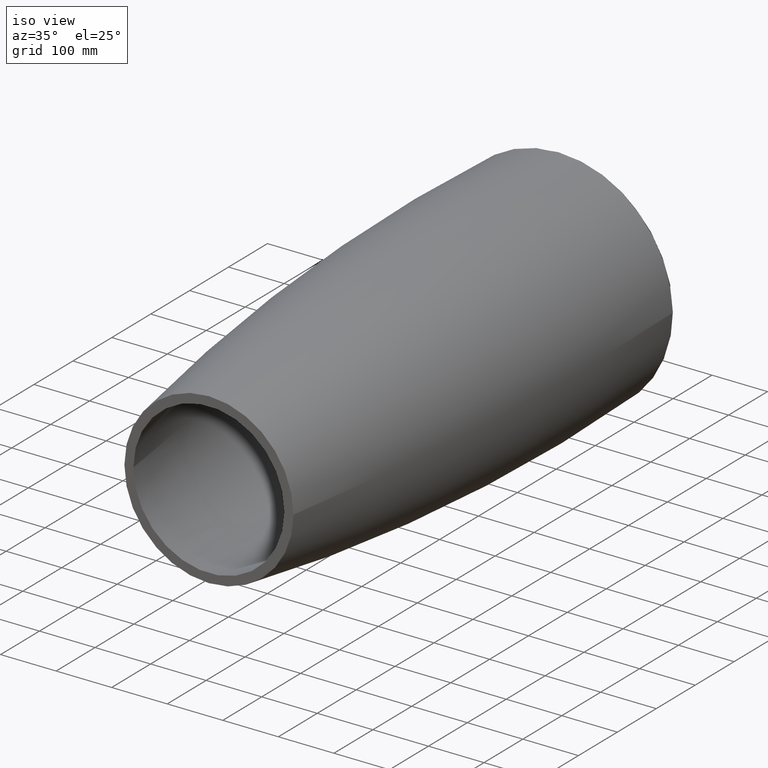
[diagram: clean part render]
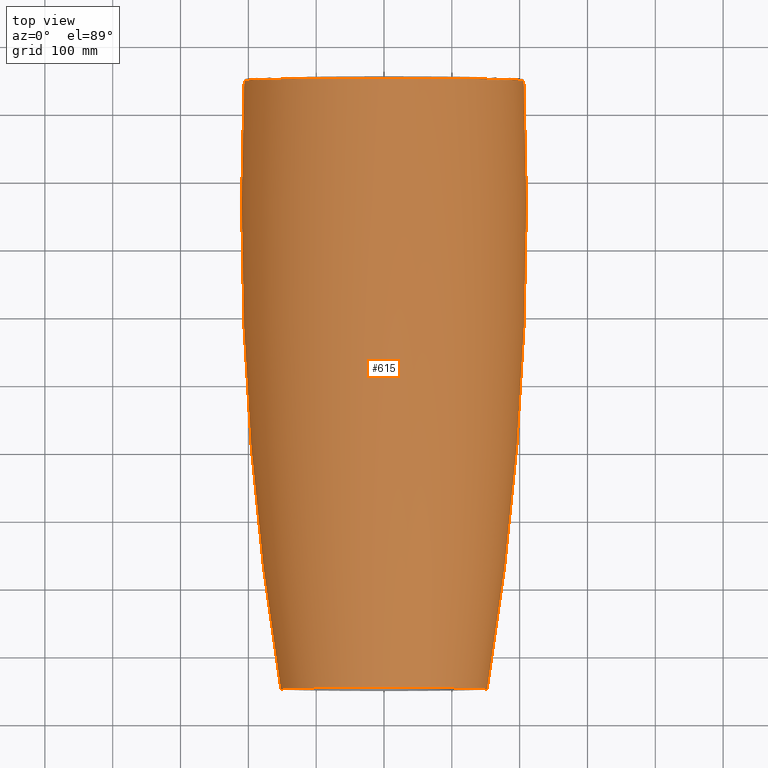
[diagram: tour spotlight — one face highlighted and labeled with its STEP entity id]
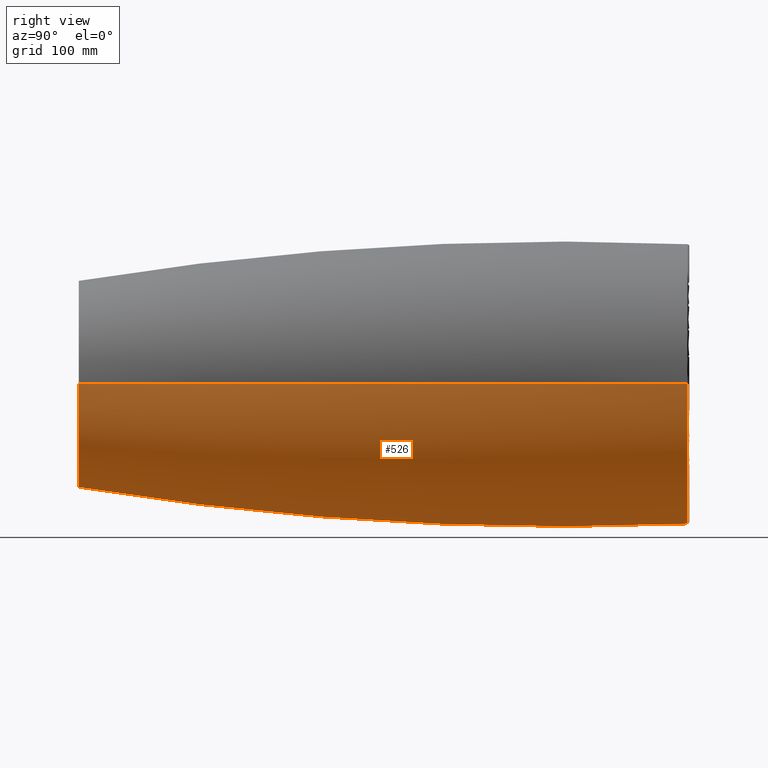
[diagram: tour spotlight — one face highlighted and labeled with its STEP entity id]
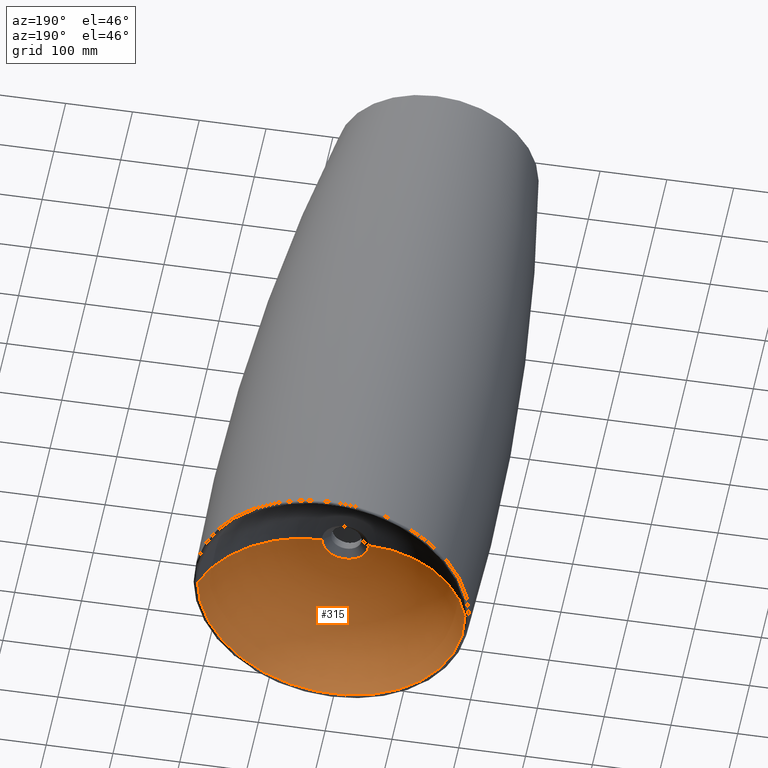
[diagram: tour spotlight — one face highlighted and labeled with its STEP entity id]
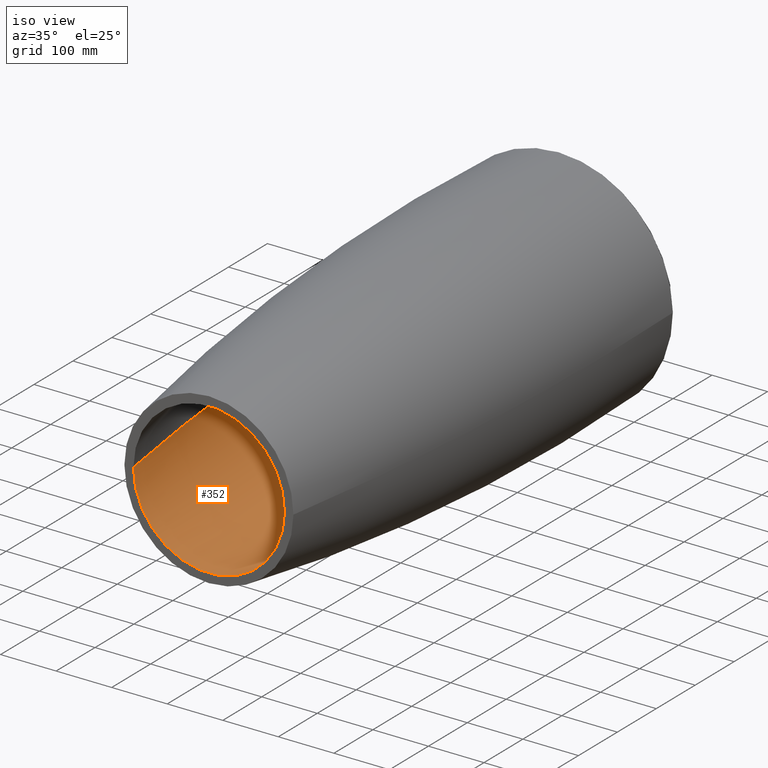
[diagram: tour spotlight — one face highlighted and labeled with its STEP entity id]
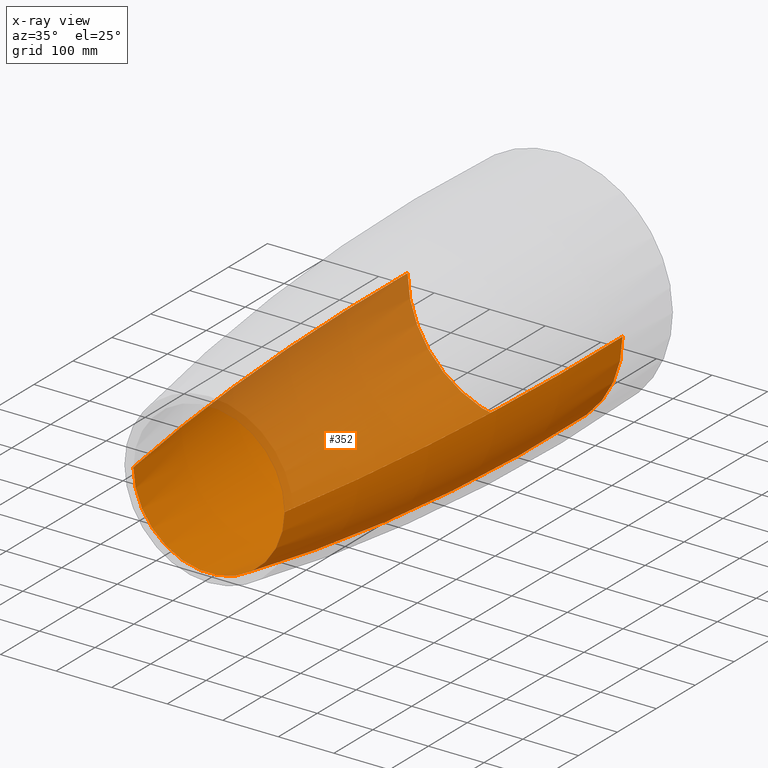
[diagram: x-ray of the same camera — body ghosted, this tour face saturated]
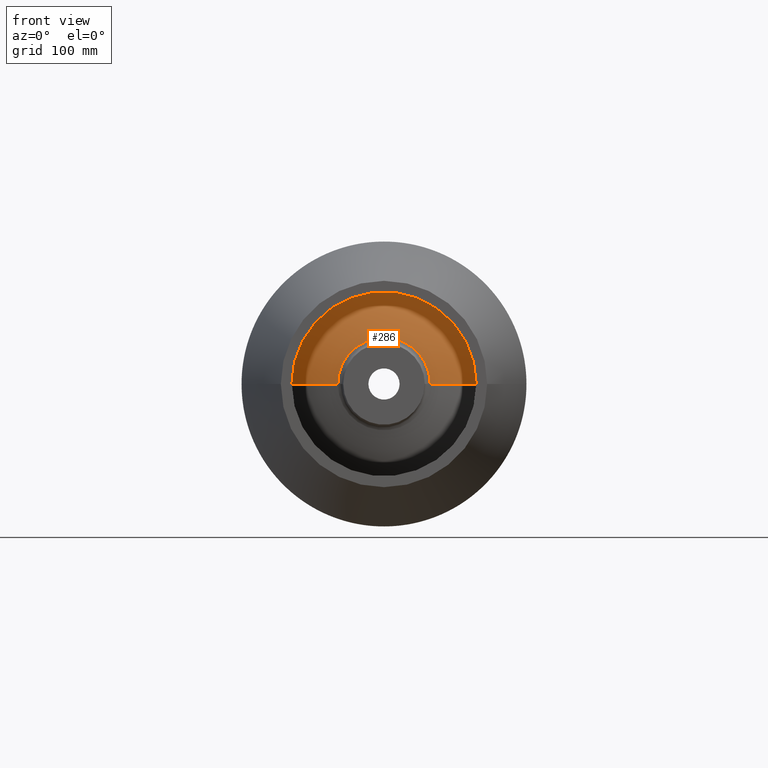
[diagram: tour spotlight — one face highlighted and labeled with its STEP entity id]
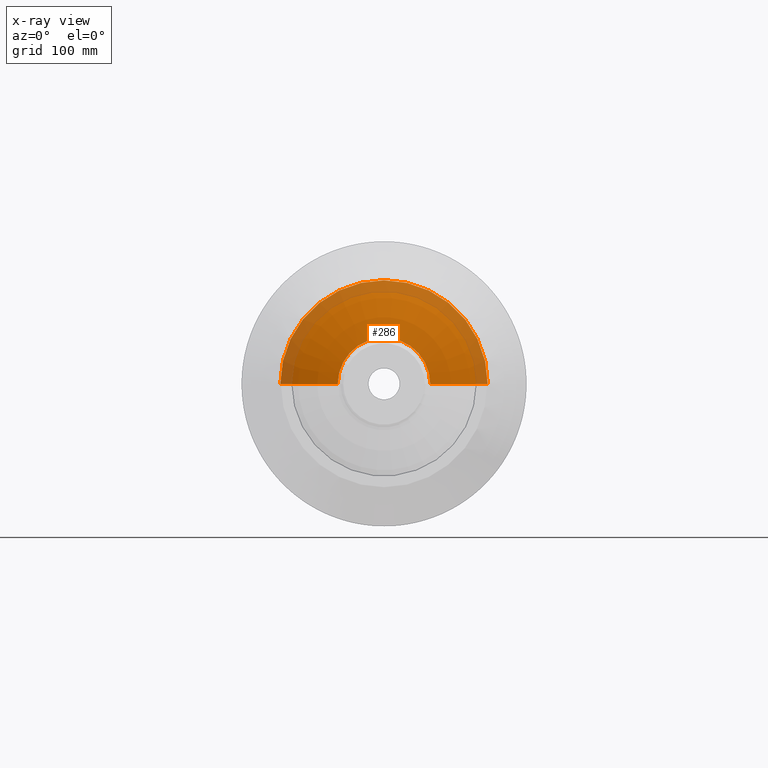
[diagram: x-ray of the same camera — body ghosted, this tour face saturated]
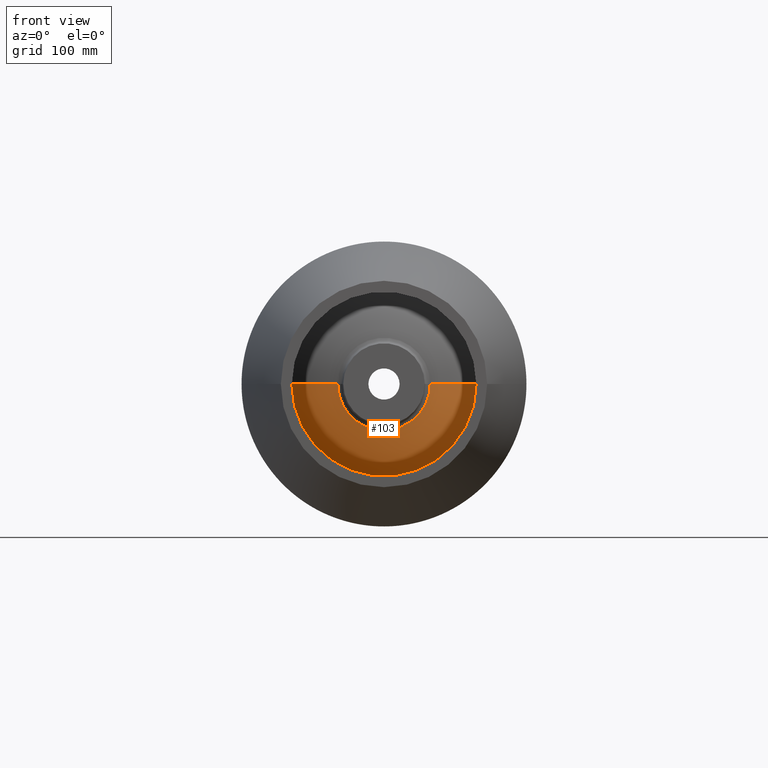
[diagram: tour spotlight — one face highlighted and labeled with its STEP entity id]
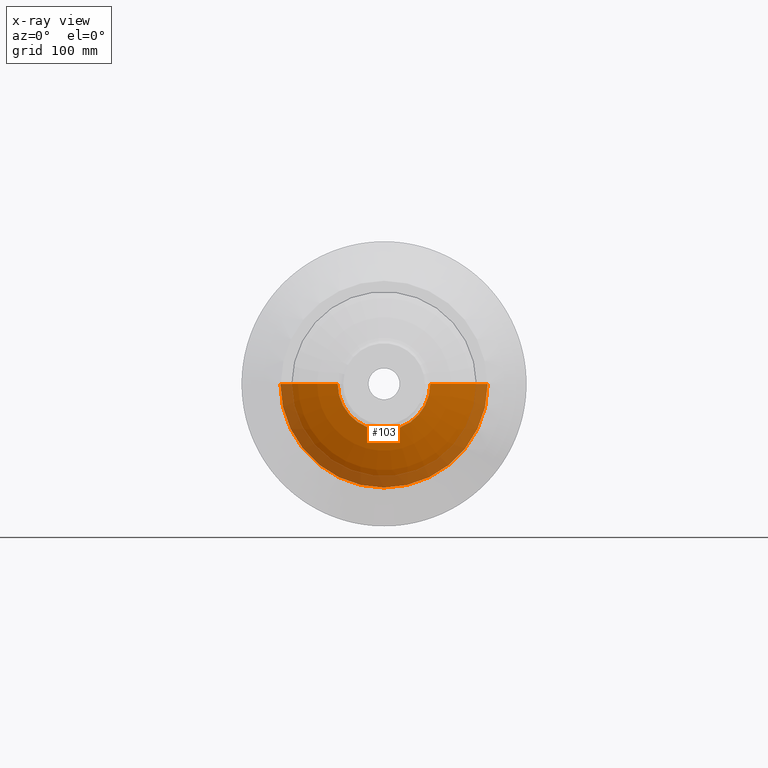
[diagram: x-ray of the same camera — body ghosted, this tour face saturated]
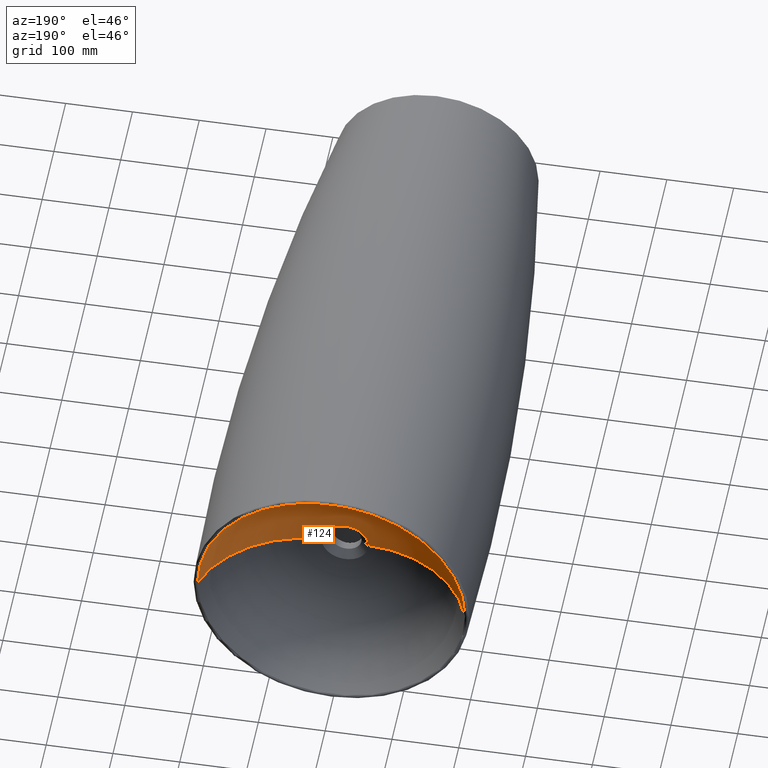
[diagram: tour spotlight — one face highlighted and labeled with its STEP entity id]
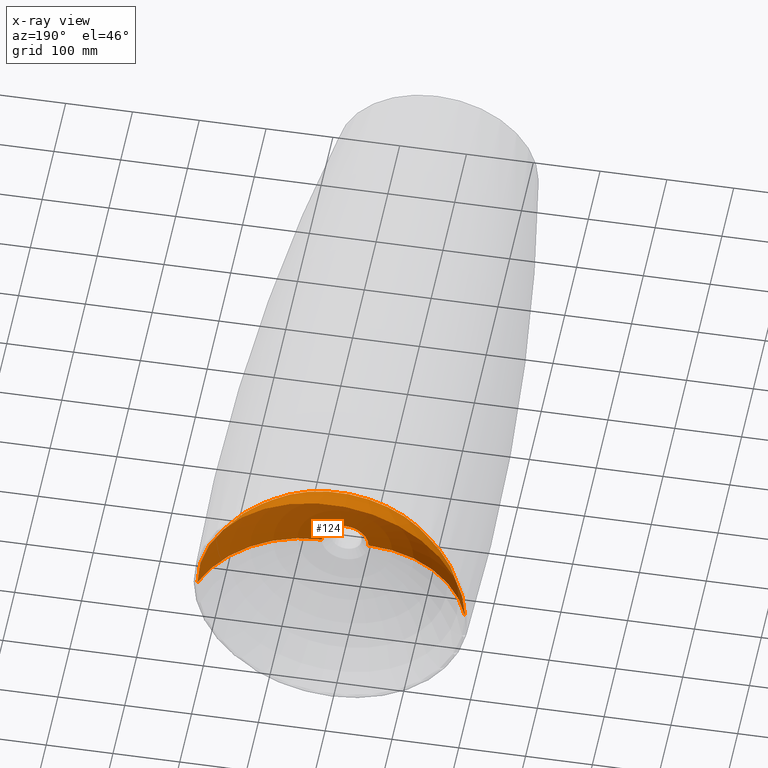
[diagram: x-ray of the same camera — body ghosted, this tour face saturated]
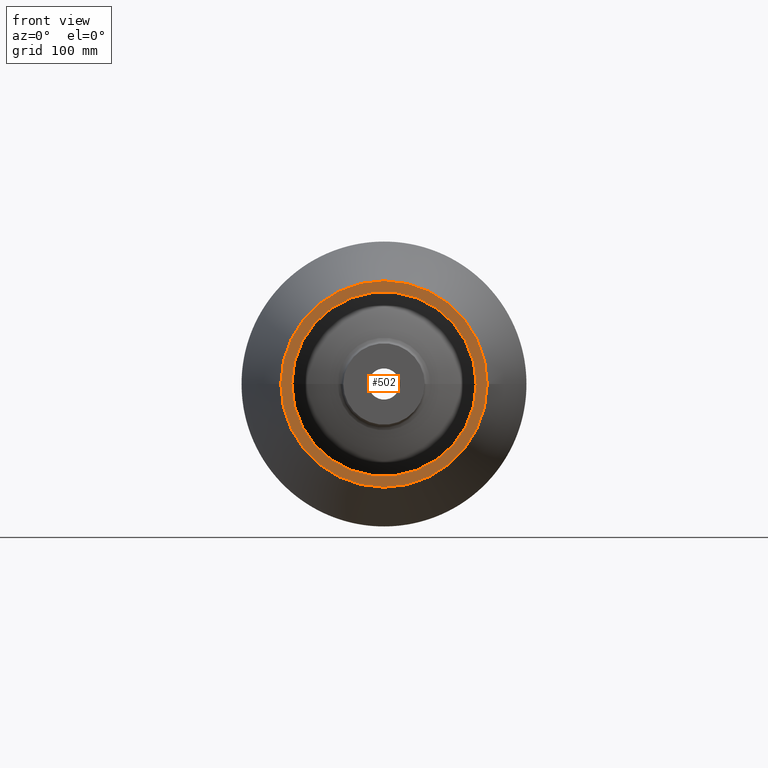
[diagram: tour spotlight — one face highlighted and labeled with its STEP entity id]
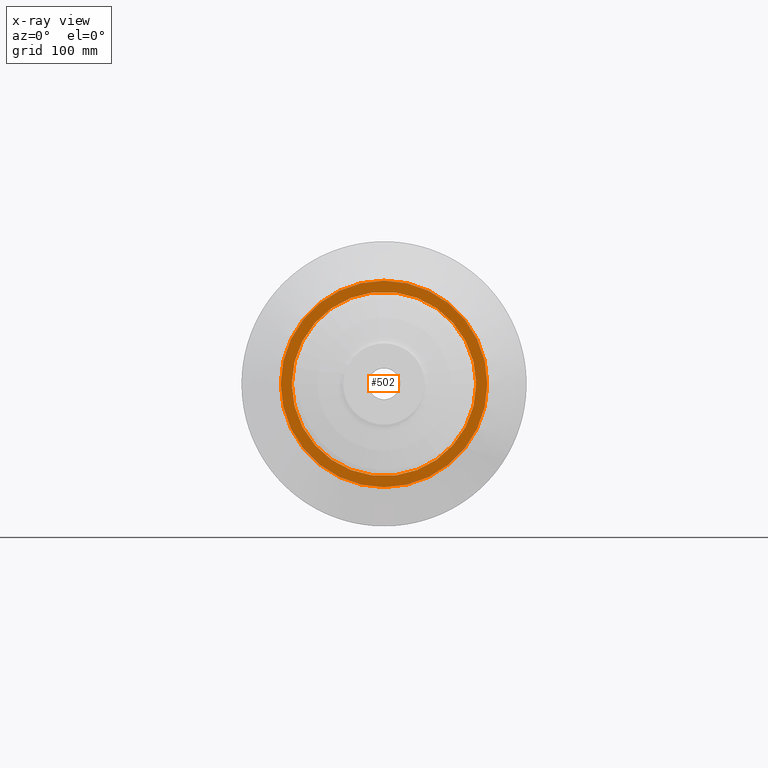
[diagram: x-ray of the same camera — body ghosted, this tour face saturated]
A machine part: a face-by-face anatomy tour. The part has 22 B-rep faces; the first image is the clean iso view, then the 8 largest visible faces are spotlighted one at a time (largest first), each with its STEP entity span.

Face 1 — top view, entity #615. In plain terms, the highlighted toroidal blend (fillet) surface has major radius 4200.2 mm and minor (blend) radius 4410.2 mm.
Definition (entity closure, byte-faithful):
#42 = TOROIDAL_SURFACE ( 'NONE', #115, -4200.202065928870979, 4410.202065928870979 ) ;
#60 = AXIS2_PLACEMENT_3D ( 'NONE', #577, #312, #309 ) ;
#69 = DIRECTION ( 'NONE',  ( 1.000000000000000000, 1.368506572352135864E-16, 0.000000000000000000 ) ) ;
#76 = DIRECTION ( 'NONE',  ( -1.000000000000000000, 0.000000000000000000, 0.000000000000000000 ) ) ;
#115 = AXIS2_PLACEMENT_3D ( 'NONE', #592, #401, #337 ) ;
#187 = EDGE_CURVE ( 'NONE', #351, #551, #336, .T. ) ;
#189 = CARTESIAN_POINT ( 'NONE',  ( 206.1215591921063606, 847.1257882539825914, 2.524261076998749186E-14 ) ) ;
#197 = VERTEX_POINT ( 'NONE', #232 ) ;
#209 = ORIENTED_EDGE ( 'NONE', *, *, #187, .F. ) ;
#210 = AXIS2_PLACEMENT_3D ( 'NONE', #266, #523, #76 ) ;
#216 = EDGE_CURVE ( 'NONE', #197, #586, #283, .T. ) ;
#232 = CARTESIAN_POINT ( 'NONE',  ( 152.1123985246398433, -49.99999999999991473, 2.193550348318507100E-14 ) ) ;
#266 = CARTESIAN_POINT ( 'NONE',  ( 4200.202065928870979, 662.2085823914454750, 0.000000000000000000 ) ) ;
#283 = CIRCLE ( 'NONE', #60, 4410.202065928870979 ) ;
#309 = DIRECTION ( 'NONE',  ( 1.000000000000000000, 0.000000000000000000, 1.224646799147353454E-16 ) ) ;
#312 = DIRECTION ( 'NONE',  ( -1.224646799147353207E-16, -1.526929428187426516E-32, 1.000000000000000000 ) ) ;
#336 = CIRCLE ( 'NONE', #210, 4410.202065928870979 ) ;
#337 = DIRECTION ( 'NONE',  ( -1.000000000000000000, -1.246832498358330099E-16, 0.000000000000000000 ) ) ;
#351 = VERTEX_POINT ( 'NONE', #477 ) ;
#365 = DIRECTION ( 'NONE',  ( -1.246832498358330099E-16, 1.000000000000000000, -0.000000000000000000 ) ) ;
#372 = CIRCLE ( 'NONE', #536, 152.1123985246397581 ) ;
#382 = CIRCLE ( 'NONE', #584, 206.1215591921062753 ) ;
#391 = EDGE_CURVE ( 'NONE', #551, #586, #382, .T. ) ;
#396 = DIRECTION ( 'NONE',  ( -1.246832498358330099E-16, 1.000000000000000000, -0.000000000000000000 ) ) ;
#401 = DIRECTION ( 'NONE',  ( -1.246832498358330099E-16, 1.000000000000000000, -0.000000000000000000 ) ) ;
#421 = CARTESIAN_POINT ( 'NONE',  ( -206.1215591921065879, 847.1257882539825914, 0.000000000000000000 ) ) ;
#438 = ORIENTED_EDGE ( 'NONE', *, *, #391, .F. ) ;
#440 = CARTESIAN_POINT ( 'NONE',  ( 8.880048061353697261E-14, -49.99999999999993605, 0.000000000000000000 ) ) ;
#442 = EDGE_CURVE ( 'NONE', #351, #197, #372, .T. ) ;
#446 = DIRECTION ( 'NONE',  ( -1.000000000000000000, 0.000000000000000000, 0.000000000000000000 ) ) ;
#454 = CARTESIAN_POINT ( 'NONE',  ( -1.056223962992482816E-13, 847.1257882539825914, 0.000000000000000000 ) ) ;
#477 = CARTESIAN_POINT ( 'NONE',  ( -152.1123985246396728, -49.99999999999995737, 0.000000000000000000 ) ) ;
#487 = ORIENTED_EDGE ( 'NONE', *, *, #442, .T. ) ;
#523 = DIRECTION ( 'NONE',  ( 0.000000000000000000, -0.000000000000000000, -1.000000000000000000 ) ) ;
#536 = AXIS2_PLACEMENT_3D ( 'NONE', #440, #365, #69 ) ;
#544 = EDGE_LOOP ( 'NONE', ( #487, #600, #438, #209 ) ) ;
#551 = VERTEX_POINT ( 'NONE', #421 ) ;
#577 = CARTESIAN_POINT ( 'NONE',  ( -4200.202065928870979, 662.2085823914443381, -5.143764015811891808E-13 ) ) ;
#584 = AXIS2_PLACEMENT_3D ( 'NONE', #454, #396, #446 ) ;
#586 = VERTEX_POINT ( 'NONE', #189 ) ;
#592 = CARTESIAN_POINT ( 'NONE',  ( 0.000000000000000000, 662.2085823914449065, 0.000000000000000000 ) ) ;
#600 = ORIENTED_EDGE ( 'NONE', *, *, #216, .T. ) ;
#615 = ADVANCED_FACE ( 'NONE', ( #627 ), #42, .T. ) ;
#627 = FACE_OUTER_BOUND ( 'NONE', #544, .T. ) ;

Face 2 — right view, entity #526. In plain terms, the highlighted toroidal blend (fillet) surface has major radius 4200.2 mm and minor (blend) radius 4410.2 mm.
Definition (entity closure, byte-faithful):
#5 = EDGE_CURVE ( 'NONE', #586, #551, #496, .T. ) ;
#15 = EDGE_CURVE ( 'NONE', #197, #351, #412, .T. ) ;
#45 = AXIS2_PLACEMENT_3D ( 'NONE', #184, #376, #167 ) ;
#60 = AXIS2_PLACEMENT_3D ( 'NONE', #577, #312, #309 ) ;
#76 = DIRECTION ( 'NONE',  ( -1.000000000000000000, 0.000000000000000000, 0.000000000000000000 ) ) ;
#151 = ORIENTED_EDGE ( 'NONE', *, *, #15, .T. ) ;
#167 = DIRECTION ( 'NONE',  ( -1.000000000000000000, -1.246832498358330099E-16, 0.000000000000000000 ) ) ;
#184 = CARTESIAN_POINT ( 'NONE',  ( 0.000000000000000000, 662.2085823914449065, 0.000000000000000000 ) ) ;
#187 = EDGE_CURVE ( 'NONE', #351, #551, #336, .T. ) ;
#189 = CARTESIAN_POINT ( 'NONE',  ( 206.1215591921063606, 847.1257882539825914, 2.524261076998749186E-14 ) ) ;
#190 = CARTESIAN_POINT ( 'NONE',  ( 8.880048061353697261E-14, -49.99999999999993605, 0.000000000000000000 ) ) ;
#197 = VERTEX_POINT ( 'NONE', #232 ) ;
#199 = TOROIDAL_SURFACE ( 'NONE', #45, -4200.202065928870979, 4410.202065928870979 ) ;
#200 = ORIENTED_EDGE ( 'NONE', *, *, #216, .F. ) ;
#210 = AXIS2_PLACEMENT_3D ( 'NONE', #266, #523, #76 ) ;
#216 = EDGE_CURVE ( 'NONE', #197, #586, #283, .T. ) ;
#231 = AXIS2_PLACEMENT_3D ( 'NONE', #190, #379, #582 ) ;
#232 = CARTESIAN_POINT ( 'NONE',  ( 152.1123985246398433, -49.99999999999991473, 2.193550348318507100E-14 ) ) ;
#238 = DIRECTION ( 'NONE',  ( -1.246832498358330099E-16, 1.000000000000000000, -0.000000000000000000 ) ) ;
#266 = CARTESIAN_POINT ( 'NONE',  ( 4200.202065928870979, 662.2085823914454750, 0.000000000000000000 ) ) ;
#283 = CIRCLE ( 'NONE', #60, 4410.202065928870979 ) ;
#309 = DIRECTION ( 'NONE',  ( 1.000000000000000000, 0.000000000000000000, 1.224646799147353454E-16 ) ) ;
#312 = DIRECTION ( 'NONE',  ( -1.224646799147353207E-16, -1.526929428187426516E-32, 1.000000000000000000 ) ) ;
#336 = CIRCLE ( 'NONE', #210, 4410.202065928870979 ) ;
#351 = VERTEX_POINT ( 'NONE', #477 ) ;
#376 = DIRECTION ( 'NONE',  ( -1.246832498358330099E-16, 1.000000000000000000, -0.000000000000000000 ) ) ;
#379 = DIRECTION ( 'NONE',  ( -1.246832498358330099E-16, 1.000000000000000000, -0.000000000000000000 ) ) ;
#412 = CIRCLE ( 'NONE', #231, 152.1123985246397581 ) ;
#421 = CARTESIAN_POINT ( 'NONE',  ( -206.1215591921065879, 847.1257882539825914, 0.000000000000000000 ) ) ;
#426 = FACE_OUTER_BOUND ( 'NONE', #628, .T. ) ;
#430 = DIRECTION ( 'NONE',  ( -1.000000000000000000, 0.000000000000000000, 0.000000000000000000 ) ) ;
#477 = CARTESIAN_POINT ( 'NONE',  ( -152.1123985246396728, -49.99999999999995737, 0.000000000000000000 ) ) ;
#496 = CIRCLE ( 'NONE', #605, 206.1215591921062753 ) ;
#504 = ORIENTED_EDGE ( 'NONE', *, *, #187, .T. ) ;
#523 = DIRECTION ( 'NONE',  ( 0.000000000000000000, -0.000000000000000000, -1.000000000000000000 ) ) ;
#526 = ADVANCED_FACE ( 'NONE', ( #426 ), #199, .T. ) ;
#527 = CARTESIAN_POINT ( 'NONE',  ( -1.056223962992482816E-13, 847.1257882539825914, 0.000000000000000000 ) ) ;
#539 = ORIENTED_EDGE ( 'NONE', *, *, #5, .F. ) ;
#551 = VERTEX_POINT ( 'NONE', #421 ) ;
#577 = CARTESIAN_POINT ( 'NONE',  ( -4200.202065928870979, 662.2085823914443381, -5.143764015811891808E-13 ) ) ;
#582 = DIRECTION ( 'NONE',  ( 1.000000000000000000, 1.368506572352135864E-16, 0.000000000000000000 ) ) ;
#586 = VERTEX_POINT ( 'NONE', #189 ) ;
#605 = AXIS2_PLACEMENT_3D ( 'NONE', #527, #238, #430 ) ;
#628 = EDGE_LOOP ( 'NONE', ( #200, #151, #504, #539 ) ) ;

Face 3 — auxiliary view, entity #315. In plain terms, the highlighted toroidal blend (fillet) surface has major radius 34.9175 mm and minor (blend) radius 174.889 mm.
Definition (entity closure, byte-faithful):
#3 = DIRECTION ( 'NONE',  ( 1.000000000000000000, 0.000000000000000000, 1.224646799147352961E-16 ) ) ;
#16 = AXIS2_PLACEMENT_3D ( 'NONE', #333, #531, #86 ) ;
#24 = DIRECTION ( 'NONE',  ( -1.246832498358330099E-16, 1.000000000000000000, -0.000000000000000000 ) ) ;
#26 = EDGE_CURVE ( 'NONE', #48, #59, #51, .T. ) ;
#30 = DIRECTION ( 'NONE',  ( -1.246832498358330099E-16, 1.000000000000000000, -0.000000000000000000 ) ) ;
#41 = ORIENTED_EDGE ( 'NONE', *, *, #204, .F. ) ;
#48 = VERTEX_POINT ( 'NONE', #251 ) ;
#51 = CIRCLE ( 'NONE', #16, 174.8895041106751194 ) ;
#59 = VERTEX_POINT ( 'NONE', #353 ) ;
#81 = DIRECTION ( 'NONE',  ( -1.000000000000000000, -1.246832498358330099E-16, 0.000000000000000000 ) ) ;
#86 = DIRECTION ( 'NONE',  ( -1.000000000000000000, 0.000000000000000000, 0.000000000000000000 ) ) ;
#88 = CARTESIAN_POINT ( 'NONE',  ( 34.91753592594206168, 904.8895041106750341, 4.276164860581778964E-15 ) ) ;
#90 = CIRCLE ( 'NONE', #451, 200.2874928100085583 ) ;
#131 = DIRECTION ( 'NONE',  ( -1.246832498358330099E-16, 1.000000000000000000, -0.000000000000000000 ) ) ;
#135 = VERTEX_POINT ( 'NONE', #161 ) ;
#161 = CARTESIAN_POINT ( 'NONE',  ( 34.91753592594214695, 730.0000000000001137, 4.276164860581787642E-15 ) ) ;
#204 = EDGE_CURVE ( 'NONE', #135, #48, #573, .T. ) ;
#241 = EDGE_CURVE ( 'NONE', #374, #59, #90, .T. ) ;
#251 = CARTESIAN_POINT ( 'NONE',  ( -34.91753592594231748, 730.0000000000001137, 0.000000000000000000 ) ) ;
#259 = AXIS2_PLACEMENT_3D ( 'NONE', #88, #293, #3 ) ;
#284 = TOROIDAL_SURFACE ( 'NONE', #625, 34.91753592594216826, 174.8895041106750909 ) ;
#293 = DIRECTION ( 'NONE',  ( -1.224646799147353207E-16, -1.526929428187426516E-32, 1.000000000000000000 ) ) ;
#296 = CARTESIAN_POINT ( 'NONE',  ( -1.110223024625156540E-13, 904.8895041106750341, 0.000000000000000000 ) ) ;
#299 = ORIENTED_EDGE ( 'NONE', *, *, #241, .T. ) ;
#307 = EDGE_LOOP ( 'NONE', ( #41, #413, #299, #311 ) ) ;
#311 = ORIENTED_EDGE ( 'NONE', *, *, #26, .F. ) ;
#315 = ADVANCED_FACE ( 'NONE', ( #324 ), #284, .F. ) ;
#324 = FACE_OUTER_BOUND ( 'NONE', #307, .T. ) ;
#333 = CARTESIAN_POINT ( 'NONE',  ( -34.91753592594228195, 904.8895041106750341, 0.000000000000000000 ) ) ;
#353 = CARTESIAN_POINT ( 'NONE',  ( -200.2874928100086720, 847.9762718334632154, 0.000000000000000000 ) ) ;
#361 = CARTESIAN_POINT ( 'NONE',  ( -1.057284373558699393E-13, 847.9762718334632154, 0.000000000000000000 ) ) ;
#370 = AXIS2_PLACEMENT_3D ( 'NONE', #517, #24, #375 ) ;
#374 = VERTEX_POINT ( 'NONE', #594 ) ;
#375 = DIRECTION ( 'NONE',  ( -1.000000000000000000, 0.000000000000000000, 0.000000000000000000 ) ) ;
#413 = ORIENTED_EDGE ( 'NONE', *, *, #623, .T. ) ;
#451 = AXIS2_PLACEMENT_3D ( 'NONE', #361, #30, #564 ) ;
#452 = CIRCLE ( 'NONE', #259, 174.8895041106751194 ) ;
#517 = CARTESIAN_POINT ( 'NONE',  ( -9.101877238015810986E-14, 730.0000000000001137, 0.000000000000000000 ) ) ;
#531 = DIRECTION ( 'NONE',  ( 0.000000000000000000, -0.000000000000000000, -1.000000000000000000 ) ) ;
#564 = DIRECTION ( 'NONE',  ( -1.000000000000000000, 0.000000000000000000, 0.000000000000000000 ) ) ;
#573 = CIRCLE ( 'NONE', #370, 34.91753592594223221 ) ;
#594 = CARTESIAN_POINT ( 'NONE',  ( 200.2874928100084730, 847.9762718334632154, 2.452814369790254858E-14 ) ) ;
#623 = EDGE_CURVE ( 'NONE', #135, #374, #452, .T. ) ;
#625 = AXIS2_PLACEMENT_3D ( 'NONE', #296, #131, #81 ) ;

Face 4 — iso view, entity #352. An x-ray twin of the same camera follows (body ghosted, this face saturated) — the face is partly hidden behind the body. In plain terms, the highlighted toroidal blend (fillet) surface has major radius 4200.2 mm and minor (blend) radius 4394.2 mm.
Definition (entity closure, byte-faithful):
#4 = ORIENTED_EDGE ( 'NONE', *, *, #138, .F. ) ;
#28 = CARTESIAN_POINT ( 'NONE',  ( -4200.202065928870979, 662.2085823914443381, -5.143764015811891808E-13 ) ) ;
#33 = CARTESIAN_POINT ( 'NONE',  ( -135.8988013690209016, -49.99999999999995026, 0.000000000000000000 ) ) ;
#35 = EDGE_CURVE ( 'NONE', #226, #511, #294, .T. ) ;
#49 = DIRECTION ( 'NONE',  ( 0.000000000000000000, -0.000000000000000000, -1.000000000000000000 ) ) ;
#78 = DIRECTION ( 'NONE',  ( 1.000000000000000000, 0.000000000000000000, 1.224646799147353454E-16 ) ) ;
#91 = AXIS2_PLACEMENT_3D ( 'NONE', #147, #110, #400 ) ;
#99 = DIRECTION ( 'NONE',  ( -1.000000000000000000, 0.000000000000000000, 0.000000000000000000 ) ) ;
#110 = DIRECTION ( 'NONE',  ( -1.246832498358330099E-16, 1.000000000000000000, -0.000000000000000000 ) ) ;
#138 = EDGE_CURVE ( 'NONE', #511, #172, #624, .T. ) ;
#142 = AXIS2_PLACEMENT_3D ( 'NONE', #318, #515, #457 ) ;
#144 = ORIENTED_EDGE ( 'NONE', *, *, #35, .F. ) ;
#145 = CARTESIAN_POINT ( 'NONE',  ( 8.880048061353697261E-14, -49.99999999999993605, 0.000000000000000000 ) ) ;
#147 = CARTESIAN_POINT ( 'NONE',  ( 0.000000000000000000, 662.2085823914449065, 0.000000000000000000 ) ) ;
#172 = VERTEX_POINT ( 'NONE', #567 ) ;
#175 = DIRECTION ( 'NONE',  ( -1.246832498358330099E-16, 1.000000000000000000, -0.000000000000000000 ) ) ;
#226 = VERTEX_POINT ( 'NONE', #411 ) ;
#233 = AXIS2_PLACEMENT_3D ( 'NONE', #28, #473, #78 ) ;
#245 = AXIS2_PLACEMENT_3D ( 'NONE', #145, #175, #483 ) ;
#250 = EDGE_LOOP ( 'NONE', ( #144, #358, #621, #4 ) ) ;
#294 = CIRCLE ( 'NONE', #245, 135.8988013690209868 ) ;
#318 = CARTESIAN_POINT ( 'NONE',  ( -9.187730895078067787E-14, 736.8857410418239624, 0.000000000000000000 ) ) ;
#330 = FACE_OUTER_BOUND ( 'NONE', #250, .T. ) ;
#352 = ADVANCED_FACE ( 'NONE', ( #330 ), #414, .F. ) ;
#358 = ORIENTED_EDGE ( 'NONE', *, *, #484, .T. ) ;
#400 = DIRECTION ( 'NONE',  ( -1.000000000000000000, -1.246832498358330099E-16, 0.000000000000000000 ) ) ;
#411 = CARTESIAN_POINT ( 'NONE',  ( 135.8988013690210721, -49.99999999999992184, 2.016161779638470888E-14 ) ) ;
#414 = TOROIDAL_SURFACE ( 'NONE', #91, -4200.202065928870979, 4394.202065928870979 ) ;
#423 = CIRCLE ( 'NONE', #142, 193.3654046113807681 ) ;
#435 = CARTESIAN_POINT ( 'NONE',  ( 193.3654046113807681, 736.8857410418239624, 2.368043238231606492E-14 ) ) ;
#449 = AXIS2_PLACEMENT_3D ( 'NONE', #494, #49, #99 ) ;
#457 = DIRECTION ( 'NONE',  ( -1.000000000000000000, 0.000000000000000000, 0.000000000000000000 ) ) ;
#473 = DIRECTION ( 'NONE',  ( -1.224646799147353207E-16, -1.526929428187426516E-32, 1.000000000000000000 ) ) ;
#481 = EDGE_CURVE ( 'NONE', #622, #172, #423, .T. ) ;
#483 = DIRECTION ( 'NONE',  ( 1.000000000000000000, 1.021185445935654007E-16, 0.000000000000000000 ) ) ;
#484 = EDGE_CURVE ( 'NONE', #226, #622, #509, .T. ) ;
#494 = CARTESIAN_POINT ( 'NONE',  ( 4200.202065928870979, 662.2085823914454750, 0.000000000000000000 ) ) ;
#509 = CIRCLE ( 'NONE', #233, 4394.202065928870979 ) ;
#511 = VERTEX_POINT ( 'NONE', #33 ) ;
#515 = DIRECTION ( 'NONE',  ( -1.246832498358330099E-16, 1.000000000000000000, -0.000000000000000000 ) ) ;
#567 = CARTESIAN_POINT ( 'NONE',  ( -193.3654046113808533, 736.8857410418239624, 0.000000000000000000 ) ) ;
#621 = ORIENTED_EDGE ( 'NONE', *, *, #481, .T. ) ;
#622 = VERTEX_POINT ( 'NONE', #435 ) ;
#624 = CIRCLE ( 'NONE', #449, 4394.202065928870979 ) ;

Face 5 — front view, entity #286. An x-ray twin of the same camera follows (body ghosted, this face saturated) — the face is partly hidden behind the body. In plain terms, the highlighted toroidal blend (fillet) surface has major radius 34.9175 mm and minor (blend) radius 189.889 mm.
Definition (entity closure, byte-faithful):
#19 = ORIENTED_EDGE ( 'NONE', *, *, #492, .T. ) ;
#43 = CARTESIAN_POINT ( 'NONE',  ( -9.426747841984855907E-14, 756.0556734282106390, 0.000000000000000000 ) ) ;
#50 = ORIENTED_EDGE ( 'NONE', *, *, #306, .T. ) ;
#72 = DIRECTION ( 'NONE',  ( 1.000000000000000000, 0.000000000000000000, 1.224646799147353207E-16 ) ) ;
#83 = TOROIDAL_SURFACE ( 'NONE', #246, 34.91753592594216826, 189.8895041106751194 ) ;
#97 = VERTEX_POINT ( 'NONE', #201 ) ;
#129 = CARTESIAN_POINT ( 'NONE',  ( -68.24490714356696230, 717.9475074937544150, 0.000000000000000000 ) ) ;
#134 = DIRECTION ( 'NONE',  ( -1.246832498358330099E-16, 1.000000000000000000, -0.000000000000000000 ) ) ;
#159 = ORIENTED_EDGE ( 'NONE', *, *, #340, .F. ) ;
#164 = AXIS2_PLACEMENT_3D ( 'NONE', #371, #575, #558 ) ;
#180 = AXIS2_PLACEMENT_3D ( 'NONE', #620, #377, #186 ) ;
#186 = DIRECTION ( 'NONE',  ( -1.000000000000000000, 0.000000000000000000, 0.000000000000000000 ) ) ;
#201 = CARTESIAN_POINT ( 'NONE',  ( 68.24490714356679177, 717.9475074937544150, 1.353775573317351336E-14 ) ) ;
#207 = EDGE_LOOP ( 'NONE', ( #50, #19, #159, #513 ) ) ;
#230 = CARTESIAN_POINT ( 'NONE',  ( -1.110223024625156540E-13, 904.8895041106750341, 0.000000000000000000 ) ) ;
#246 = AXIS2_PLACEMENT_3D ( 'NONE', #230, #420, #612 ) ;
#286 = ADVANCED_FACE ( 'NONE', ( #522 ), #83, .T. ) ;
#295 = CIRCLE ( 'NONE', #164, 68.24490714356687704 ) ;
#306 = EDGE_CURVE ( 'NONE', #314, #97, #295, .T. ) ;
#314 = VERTEX_POINT ( 'NONE', #129 ) ;
#340 = EDGE_CURVE ( 'NONE', #590, #386, #432, .T. ) ;
#345 = EDGE_CURVE ( 'NONE', #314, #590, #606, .T. ) ;
#354 = CARTESIAN_POINT ( 'NONE',  ( 152.8434220399825847, 756.0556734282106390, 2.119917656975765769E-14 ) ) ;
#371 = CARTESIAN_POINT ( 'NONE',  ( -8.951602844585736985E-14, 717.9475074937544150, 0.000000000000000000 ) ) ;
#377 = DIRECTION ( 'NONE',  ( 0.000000000000000000, -0.000000000000000000, -1.000000000000000000 ) ) ;
#384 = CARTESIAN_POINT ( 'NONE',  ( -152.8434220399827552, 756.0556734282106390, 0.000000000000000000 ) ) ;
#386 = VERTEX_POINT ( 'NONE', #354 ) ;
#420 = DIRECTION ( 'NONE',  ( -1.246832498358330099E-16, 1.000000000000000000, -0.000000000000000000 ) ) ;
#429 = DIRECTION ( 'NONE',  ( -1.000000000000000000, 0.000000000000000000, 0.000000000000000000 ) ) ;
#432 = CIRCLE ( 'NONE', #596, 152.8434220399826700 ) ;
#434 = CIRCLE ( 'NONE', #585, 189.8895041106751194 ) ;
#460 = CARTESIAN_POINT ( 'NONE',  ( 34.91753592594206168, 904.8895041106750341, 4.276164860581778964E-15 ) ) ;
#492 = EDGE_CURVE ( 'NONE', #97, #386, #434, .T. ) ;
#513 = ORIENTED_EDGE ( 'NONE', *, *, #345, .F. ) ;
#518 = DIRECTION ( 'NONE',  ( -1.224646799147353207E-16, -1.526929428187426516E-32, 1.000000000000000000 ) ) ;
#522 = FACE_OUTER_BOUND ( 'NONE', #207, .T. ) ;
#558 = DIRECTION ( 'NONE',  ( -1.000000000000000000, 0.000000000000000000, 0.000000000000000000 ) ) ;
#575 = DIRECTION ( 'NONE',  ( -1.246832498358330099E-16, 1.000000000000000000, -0.000000000000000000 ) ) ;
#585 = AXIS2_PLACEMENT_3D ( 'NONE', #460, #518, #72 ) ;
#590 = VERTEX_POINT ( 'NONE', #384 ) ;
#596 = AXIS2_PLACEMENT_3D ( 'NONE', #43, #134, #429 ) ;
#606 = CIRCLE ( 'NONE', #180, 189.8895041106751194 ) ;
#612 = DIRECTION ( 'NONE',  ( -1.000000000000000000, -1.246832498358330099E-16, 0.000000000000000000 ) ) ;
#620 = CARTESIAN_POINT ( 'NONE',  ( -34.91753592594228195, 904.8895041106750341, 0.000000000000000000 ) ) ;

Face 6 — front view, entity #103. An x-ray twin of the same camera follows (body ghosted, this face saturated) — the face is partly hidden behind the body. In plain terms, the highlighted toroidal blend (fillet) surface has major radius 34.9175 mm and minor (blend) radius 189.889 mm.
Definition (entity closure, byte-faithful):
#7 = DIRECTION ( 'NONE',  ( -1.000000000000000000, 0.000000000000000000, 0.000000000000000000 ) ) ;
#18 = CIRCLE ( 'NONE', #182, 68.24490714356687704 ) ;
#54 = EDGE_CURVE ( 'NONE', #386, #590, #595, .T. ) ;
#64 = ORIENTED_EDGE ( 'NONE', *, *, #345, .T. ) ;
#72 = DIRECTION ( 'NONE',  ( 1.000000000000000000, 0.000000000000000000, 1.224646799147353207E-16 ) ) ;
#87 = DIRECTION ( 'NONE',  ( -1.000000000000000000, 0.000000000000000000, 0.000000000000000000 ) ) ;
#97 = VERTEX_POINT ( 'NONE', #201 ) ;
#103 = ADVANCED_FACE ( 'NONE', ( #555 ), #269, .T. ) ;
#129 = CARTESIAN_POINT ( 'NONE',  ( -68.24490714356696230, 717.9475074937544150, 0.000000000000000000 ) ) ;
#140 = EDGE_LOOP ( 'NONE', ( #364, #243, #64, #357 ) ) ;
#152 = AXIS2_PLACEMENT_3D ( 'NONE', #445, #302, #217 ) ;
#180 = AXIS2_PLACEMENT_3D ( 'NONE', #620, #377, #186 ) ;
#182 = AXIS2_PLACEMENT_3D ( 'NONE', #616, #533, #87 ) ;
#186 = DIRECTION ( 'NONE',  ( -1.000000000000000000, 0.000000000000000000, 0.000000000000000000 ) ) ;
#201 = CARTESIAN_POINT ( 'NONE',  ( 68.24490714356679177, 717.9475074937544150, 1.353775573317351336E-14 ) ) ;
#217 = DIRECTION ( 'NONE',  ( -1.000000000000000000, -1.246832498358330099E-16, 0.000000000000000000 ) ) ;
#243 = ORIENTED_EDGE ( 'NONE', *, *, #535, .T. ) ;
#269 = TOROIDAL_SURFACE ( 'NONE', #152, 34.91753592594216826, 189.8895041106751194 ) ;
#302 = DIRECTION ( 'NONE',  ( -1.246832498358330099E-16, 1.000000000000000000, -0.000000000000000000 ) ) ;
#314 = VERTEX_POINT ( 'NONE', #129 ) ;
#345 = EDGE_CURVE ( 'NONE', #314, #590, #606, .T. ) ;
#354 = CARTESIAN_POINT ( 'NONE',  ( 152.8434220399825847, 756.0556734282106390, 2.119917656975765769E-14 ) ) ;
#357 = ORIENTED_EDGE ( 'NONE', *, *, #54, .F. ) ;
#364 = ORIENTED_EDGE ( 'NONE', *, *, #492, .F. ) ;
#377 = DIRECTION ( 'NONE',  ( 0.000000000000000000, -0.000000000000000000, -1.000000000000000000 ) ) ;
#380 = AXIS2_PLACEMENT_3D ( 'NONE', #443, #403, #7 ) ;
#384 = CARTESIAN_POINT ( 'NONE',  ( -152.8434220399827552, 756.0556734282106390, 0.000000000000000000 ) ) ;
#386 = VERTEX_POINT ( 'NONE', #354 ) ;
#403 = DIRECTION ( 'NONE',  ( -1.246832498358330099E-16, 1.000000000000000000, -0.000000000000000000 ) ) ;
#434 = CIRCLE ( 'NONE', #585, 189.8895041106751194 ) ;
#443 = CARTESIAN_POINT ( 'NONE',  ( -9.426747841984855907E-14, 756.0556734282106390, 0.000000000000000000 ) ) ;
#445 = CARTESIAN_POINT ( 'NONE',  ( -1.110223024625156540E-13, 904.8895041106750341, 0.000000000000000000 ) ) ;
#460 = CARTESIAN_POINT ( 'NONE',  ( 34.91753592594206168, 904.8895041106750341, 4.276164860581778964E-15 ) ) ;
#492 = EDGE_CURVE ( 'NONE', #97, #386, #434, .T. ) ;
#518 = DIRECTION ( 'NONE',  ( -1.224646799147353207E-16, -1.526929428187426516E-32, 1.000000000000000000 ) ) ;
#533 = DIRECTION ( 'NONE',  ( -1.246832498358330099E-16, 1.000000000000000000, -0.000000000000000000 ) ) ;
#535 = EDGE_CURVE ( 'NONE', #97, #314, #18, .T. ) ;
#555 = FACE_OUTER_BOUND ( 'NONE', #140, .T. ) ;
#585 = AXIS2_PLACEMENT_3D ( 'NONE', #460, #518, #72 ) ;
#590 = VERTEX_POINT ( 'NONE', #384 ) ;
#595 = CIRCLE ( 'NONE', #380, 152.8434220399826700 ) ;
#606 = CIRCLE ( 'NONE', #180, 189.8895041106751194 ) ;
#616 = CARTESIAN_POINT ( 'NONE',  ( -8.951602844585736985E-14, 717.9475074937544150, 0.000000000000000000 ) ) ;
#620 = CARTESIAN_POINT ( 'NONE',  ( -34.91753592594228195, 904.8895041106750341, 0.000000000000000000 ) ) ;

Face 7 — auxiliary view, entity #124. An x-ray twin of the same camera follows (body ghosted, this face saturated) — the face is partly hidden behind the body. In plain terms, the highlighted toroidal blend (fillet) surface has major radius 34.9175 mm and minor (blend) radius 174.889 mm.
Definition (entity closure, byte-faithful):
#3 = DIRECTION ( 'NONE',  ( 1.000000000000000000, 0.000000000000000000, 1.224646799147352961E-16 ) ) ;
#16 = AXIS2_PLACEMENT_3D ( 'NONE', #333, #531, #86 ) ;
#17 = AXIS2_PLACEMENT_3D ( 'NONE', #568, #417, #179 ) ;
#26 = EDGE_CURVE ( 'NONE', #48, #59, #51, .T. ) ;
#38 = CIRCLE ( 'NONE', #393, 34.91753592594223221 ) ;
#48 = VERTEX_POINT ( 'NONE', #251 ) ;
#51 = CIRCLE ( 'NONE', #16, 174.8895041106751194 ) ;
#59 = VERTEX_POINT ( 'NONE', #353 ) ;
#77 = EDGE_CURVE ( 'NONE', #48, #135, #38, .T. ) ;
#86 = DIRECTION ( 'NONE',  ( -1.000000000000000000, 0.000000000000000000, 0.000000000000000000 ) ) ;
#88 = CARTESIAN_POINT ( 'NONE',  ( 34.91753592594206168, 904.8895041106750341, 4.276164860581778964E-15 ) ) ;
#112 = AXIS2_PLACEMENT_3D ( 'NONE', #342, #601, #453 ) ;
#124 = ADVANCED_FACE ( 'NONE', ( #260 ), #136, .F. ) ;
#135 = VERTEX_POINT ( 'NONE', #161 ) ;
#136 = TOROIDAL_SURFACE ( 'NONE', #112, 34.91753592594216826, 174.8895041106750909 ) ;
#157 = DIRECTION ( 'NONE',  ( -1.246832498358330099E-16, 1.000000000000000000, -0.000000000000000000 ) ) ;
#161 = CARTESIAN_POINT ( 'NONE',  ( 34.91753592594214695, 730.0000000000001137, 4.276164860581787642E-15 ) ) ;
#179 = DIRECTION ( 'NONE',  ( -1.000000000000000000, 0.000000000000000000, 0.000000000000000000 ) ) ;
#235 = ORIENTED_EDGE ( 'NONE', *, *, #466, .T. ) ;
#251 = CARTESIAN_POINT ( 'NONE',  ( -34.91753592594231748, 730.0000000000001137, 0.000000000000000000 ) ) ;
#254 = CARTESIAN_POINT ( 'NONE',  ( -9.101877238015810986E-14, 730.0000000000001137, 0.000000000000000000 ) ) ;
#259 = AXIS2_PLACEMENT_3D ( 'NONE', #88, #293, #3 ) ;
#260 = FACE_OUTER_BOUND ( 'NONE', #493, .T. ) ;
#288 = CIRCLE ( 'NONE', #17, 200.2874928100085583 ) ;
#293 = DIRECTION ( 'NONE',  ( -1.224646799147353207E-16, -1.526929428187426516E-32, 1.000000000000000000 ) ) ;
#333 = CARTESIAN_POINT ( 'NONE',  ( -34.91753592594228195, 904.8895041106750341, 0.000000000000000000 ) ) ;
#342 = CARTESIAN_POINT ( 'NONE',  ( -1.110223024625156540E-13, 904.8895041106750341, 0.000000000000000000 ) ) ;
#353 = CARTESIAN_POINT ( 'NONE',  ( -200.2874928100086720, 847.9762718334632154, 0.000000000000000000 ) ) ;
#366 = ORIENTED_EDGE ( 'NONE', *, *, #77, .F. ) ;
#374 = VERTEX_POINT ( 'NONE', #594 ) ;
#393 = AXIS2_PLACEMENT_3D ( 'NONE', #254, #157, #546 ) ;
#405 = ORIENTED_EDGE ( 'NONE', *, *, #623, .F. ) ;
#417 = DIRECTION ( 'NONE',  ( -1.246832498358330099E-16, 1.000000000000000000, -0.000000000000000000 ) ) ;
#452 = CIRCLE ( 'NONE', #259, 174.8895041106751194 ) ;
#453 = DIRECTION ( 'NONE',  ( -1.000000000000000000, -1.246832498358330099E-16, 0.000000000000000000 ) ) ;
#462 = ORIENTED_EDGE ( 'NONE', *, *, #26, .T. ) ;
#466 = EDGE_CURVE ( 'NONE', #59, #374, #288, .T. ) ;
#493 = EDGE_LOOP ( 'NONE', ( #405, #366, #462, #235 ) ) ;
#531 = DIRECTION ( 'NONE',  ( 0.000000000000000000, -0.000000000000000000, -1.000000000000000000 ) ) ;
#546 = DIRECTION ( 'NONE',  ( -1.000000000000000000, 0.000000000000000000, 0.000000000000000000 ) ) ;
#568 = CARTESIAN_POINT ( 'NONE',  ( -1.057284373558699393E-13, 847.9762718334632154, 0.000000000000000000 ) ) ;
#594 = CARTESIAN_POINT ( 'NONE',  ( 200.2874928100084730, 847.9762718334632154, 2.452814369790254858E-14 ) ) ;
#601 = DIRECTION ( 'NONE',  ( -1.246832498358330099E-16, 1.000000000000000000, -0.000000000000000000 ) ) ;
#623 = EDGE_CURVE ( 'NONE', #135, #374, #452, .T. ) ;

Face 8 — front view, entity #502. An x-ray twin of the same camera follows (body ghosted, this face saturated) — the face is partly hidden behind the body. In plain terms, the highlighted planar face has unit normal (0, -1, 0).
Definition (entity closure, byte-faithful):
#10 = DIRECTION ( 'NONE',  ( -1.246832498358330099E-16, 1.000000000000000000, -0.000000000000000000 ) ) ;
#15 = EDGE_CURVE ( 'NONE', #197, #351, #412, .T. ) ;
#22 = EDGE_LOOP ( 'NONE', ( #607, #458 ) ) ;
#31 = CARTESIAN_POINT ( 'NONE',  ( 6.234162491791648129E-15, -49.99999999999997868, 0.000000000000000000 ) ) ;
#33 = CARTESIAN_POINT ( 'NONE',  ( -135.8988013690209016, -49.99999999999995026, 0.000000000000000000 ) ) ;
#35 = EDGE_CURVE ( 'NONE', #226, #511, #294, .T. ) ;
#69 = DIRECTION ( 'NONE',  ( 1.000000000000000000, 1.368506572352135864E-16, 0.000000000000000000 ) ) ;
#145 = CARTESIAN_POINT ( 'NONE',  ( 8.880048061353697261E-14, -49.99999999999993605, 0.000000000000000000 ) ) ;
#155 = DIRECTION ( 'NONE',  ( 1.000000000000000000, 1.021185445935654007E-16, 0.000000000000000000 ) ) ;
#175 = DIRECTION ( 'NONE',  ( -1.246832498358330099E-16, 1.000000000000000000, -0.000000000000000000 ) ) ;
#190 = CARTESIAN_POINT ( 'NONE',  ( 8.880048061353697261E-14, -49.99999999999993605, 0.000000000000000000 ) ) ;
#197 = VERTEX_POINT ( 'NONE', #232 ) ;
#226 = VERTEX_POINT ( 'NONE', #411 ) ;
#228 = DIRECTION ( 'NONE',  ( 1.246832498358330099E-16, -1.000000000000000000, 0.000000000000000000 ) ) ;
#231 = AXIS2_PLACEMENT_3D ( 'NONE', #190, #379, #582 ) ;
#232 = CARTESIAN_POINT ( 'NONE',  ( 152.1123985246398433, -49.99999999999991473, 2.193550348318507100E-14 ) ) ;
#245 = AXIS2_PLACEMENT_3D ( 'NONE', #145, #175, #483 ) ;
#247 = EDGE_LOOP ( 'NONE', ( #501, #557 ) ) ;
#272 = FACE_BOUND ( 'NONE', #22, .T. ) ;
#282 = CARTESIAN_POINT ( 'NONE',  ( 8.880048061353697261E-14, -49.99999999999993605, 0.000000000000000000 ) ) ;
#294 = CIRCLE ( 'NONE', #245, 135.8988013690209868 ) ;
#323 = AXIS2_PLACEMENT_3D ( 'NONE', #31, #228, #329 ) ;
#329 = DIRECTION ( 'NONE',  ( 1.000000000000000000, 1.246832498358330099E-16, 0.000000000000000000 ) ) ;
#331 = CIRCLE ( 'NONE', #614, 135.8988013690209868 ) ;
#351 = VERTEX_POINT ( 'NONE', #477 ) ;
#363 = EDGE_CURVE ( 'NONE', #511, #226, #331, .T. ) ;
#365 = DIRECTION ( 'NONE',  ( -1.246832498358330099E-16, 1.000000000000000000, -0.000000000000000000 ) ) ;
#372 = CIRCLE ( 'NONE', #536, 152.1123985246397581 ) ;
#379 = DIRECTION ( 'NONE',  ( -1.246832498358330099E-16, 1.000000000000000000, -0.000000000000000000 ) ) ;
#411 = CARTESIAN_POINT ( 'NONE',  ( 135.8988013690210721, -49.99999999999992184, 2.016161779638470888E-14 ) ) ;
#412 = CIRCLE ( 'NONE', #231, 152.1123985246397581 ) ;
#440 = CARTESIAN_POINT ( 'NONE',  ( 8.880048061353697261E-14, -49.99999999999993605, 0.000000000000000000 ) ) ;
#442 = EDGE_CURVE ( 'NONE', #351, #197, #372, .T. ) ;
#458 = ORIENTED_EDGE ( 'NONE', *, *, #35, .T. ) ;
#467 = PLANE ( 'NONE',  #323 ) ;
#470 = FACE_OUTER_BOUND ( 'NONE', #247, .T. ) ;
#477 = CARTESIAN_POINT ( 'NONE',  ( -152.1123985246396728, -49.99999999999995737, 0.000000000000000000 ) ) ;
#483 = DIRECTION ( 'NONE',  ( 1.000000000000000000, 1.021185445935654007E-16, 0.000000000000000000 ) ) ;
#501 = ORIENTED_EDGE ( 'NONE', *, *, #442, .F. ) ;
#502 = ADVANCED_FACE ( 'NONE', ( #272, #470 ), #467, .T. ) ;
#511 = VERTEX_POINT ( 'NONE', #33 ) ;
#536 = AXIS2_PLACEMENT_3D ( 'NONE', #440, #365, #69 ) ;
#557 = ORIENTED_EDGE ( 'NONE', *, *, #15, .F. ) ;
#582 = DIRECTION ( 'NONE',  ( 1.000000000000000000, 1.368506572352135864E-16, 0.000000000000000000 ) ) ;
#607 = ORIENTED_EDGE ( 'NONE', *, *, #363, .T. ) ;
#614 = AXIS2_PLACEMENT_3D ( 'NONE', #282, #10, #155 ) ;